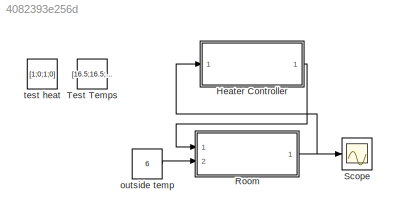
MODEL slx_4082393e256d
KIND model
CONFIG AbsTol = auto
CONFIG EnableMultiTasking = off
CONFIG FixedStep = auto
CONFIG MaxStep = auto
CONFIG MinStep = auto
CONFIG RelTol = 1e-3
CONFIG SampleTimeConstraint = Unconstrained
CONFIG SolverName = FixedStepAuto
CONFIG StartTime = 0.0
CONFIG StopTime = 25.0
WORKSPACE source: mxarray member
WORKSPACE Constant_a: Simulink.Parameter (value not decoded)
WORKSPACE Constant_b: Simulink.Parameter (value not decoded)
WORKSPACE Initial_Room_Temps: Simulink.Parameter (value not decoded)
WORKSPACE constant_c: Simulink.Parameter (value not decoded)
WORKSPACE dif_temps: Simulink.Parameter (value not decoded)
WORKSPACE get_temps: Simulink.Parameter (value not decoded)
WORKSPACE initial_placement: Simulink.Parameter (value not decoded)
WORKSPACE off_temps: Simulink.Parameter (value not decoded)
WORKSPACE on_temps: Simulink.Parameter (value not decoded)
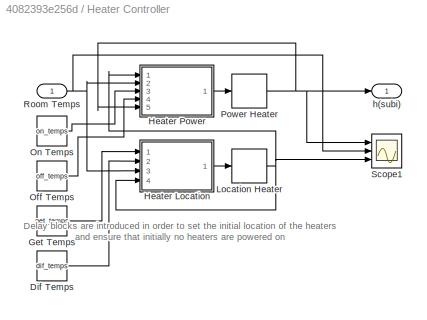
BLOCK [SubSystem] Heater Controller
  Ports = [1, 1]
  RequestExecContextInheritance = off
BLOCK [Constant] Heater Controller/Dif Temps
  Value = dif_temps
BLOCK [Constant] Heater Controller/Get Temps
  Value = get_temps
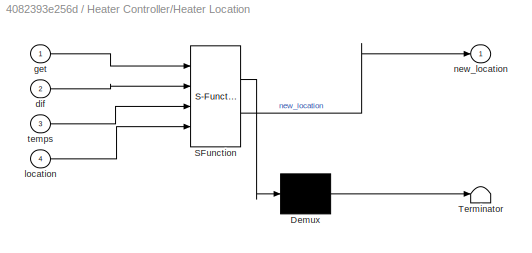
BLOCK [SubSystem] Heater Controller/Heater Location
  ErrorFcn = Stateflow.Translate.translate
  PermitHierarchicalResolution = ExplicitOnly
  Ports = [4, 1]
  RequestExecContextInheritance = off
  SFBlockType = MATLAB Function
  TreatAsAtomicUnit = on
BLOCK [Demux] Heater Controller/Heater Location/ Demux 
  Outputs = 1
  Ports = [1, 1]
BLOCK [S-Function] Heater Controller/Heater Location/ SFunction 
  EnableBusSupport = on
  FunctionName = sf_sfun
  PortCounts = [4 2]
  Ports = [4, 2]
  SFcnIsStateOwnerBlock = off
  SFunctionDeploymentMode = off
  Tag = Stateflow S-Function 1
BLOCK [Terminator] Heater Controller/Heater Location/ Terminator 
BLOCK [Inport] Heater Controller/Heater Location/dif
  Port = 2
BLOCK [Inport] Heater Controller/Heater Location/get
BLOCK [Inport] Heater Controller/Heater Location/location
  Port = 4
BLOCK [Outport] Heater Controller/Heater Location/new_location
BLOCK [Inport] Heater Controller/Heater Location/temps
  Port = 3
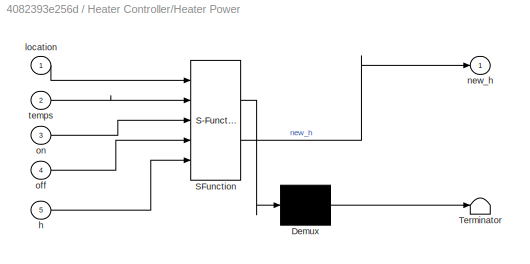
BLOCK [SubSystem] Heater Controller/Heater Power
  ErrorFcn = Stateflow.Translate.translate
  PermitHierarchicalResolution = ExplicitOnly
  Ports = [5, 1]
  RequestExecContextInheritance = off
  SFBlockType = MATLAB Function
  TreatAsAtomicUnit = on
BLOCK [Demux] Heater Controller/Heater Power/ Demux 
  Outputs = 1
  Ports = [1, 1]
BLOCK [S-Function] Heater Controller/Heater Power/ SFunction 
  EnableBusSupport = on
  FunctionName = sf_sfun
  PortCounts = [5 2]
  Ports = [5, 2]
  SFcnIsStateOwnerBlock = off
  SFunctionDeploymentMode = off
  Tag = Stateflow S-Function 3
BLOCK [Terminator] Heater Controller/Heater Power/ Terminator 
BLOCK [Inport] Heater Controller/Heater Power/h
  Port = 5
BLOCK [Inport] Heater Controller/Heater Power/location
BLOCK [Outport] Heater Controller/Heater Power/new_h
BLOCK [Inport] Heater Controller/Heater Power/off
  Port = 4
BLOCK [Inport] Heater Controller/Heater Power/on
  Port = 3
BLOCK [Inport] Heater Controller/Heater Power/temps
  Port = 2
BLOCK [Delay] Heater Controller/Location Heater
  DelayLength = 1
  InitialCondition = initial_placement
  InputPortMap = u0
  Ports = [1, 1]
BLOCK [Constant] Heater Controller/Off Temps
  Value = off_temps
BLOCK [Constant] Heater Controller/On Temps
  Value = on_temps
BLOCK [Delay] Heater Controller/Power Heater
  DelayLength = 1
  InitialCondition = [0;0;0;0]
  InputPortMap = u0
  Ports = [1, 1]
BLOCK [Inport] Heater Controller/Room Temps
BLOCK [Scope] Heater Controller/Scope1
  Floating = off
  NumInputPorts = 3
  Ports = [3]
  ScopeSpecificationString = Simulink.scopes.TimeScopeBlockCfg('CurrentConfiguration', extmgr.ConfigurationSet(extmgr.Configuration('Core','General UI',true),extmgr.Configuration('Core','Source UI',true),extmgr.Configuration('Sources','WiredSimulink',true,'DataLoggingVariableName','ScopeData3'),extmgr.Configuration('Visuals','Time Domain',true,'SerializedDisplays',{struct('MinYLimReal','-0.125','MaxYLimReal','1.125','YLabelRe...<+3205ch>
BLOCK [Outport] Heater Controller/h(subi)
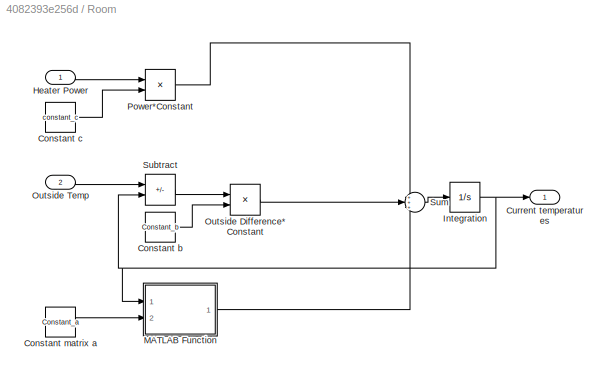
BLOCK [SubSystem] Room
  Ports = [2, 1]
  RequestExecContextInheritance = off
BLOCK [Constant] Room/Constant b
  Value = Constant_b
BLOCK [Constant] Room/Constant c
  Value = constant_c
BLOCK [Constant] Room/Constant matrix a
  Value = Constant_a
  VectorParams1D = off
BLOCK [Outport] Room/Current temperatures
BLOCK [Inport] Room/Heater Power
  PortDimensions = 4
BLOCK [Integrator] Room/Integration
  InitialCondition = Initial_Room_Temps
  Ports = [1, 1]
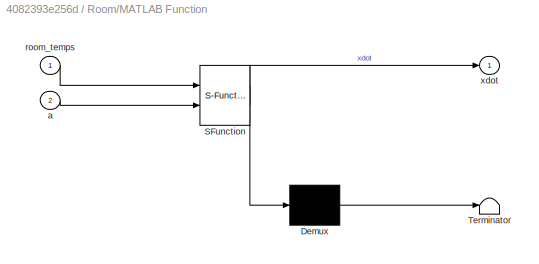
BLOCK [SubSystem] Room/MATLAB Function
  ErrorFcn = Stateflow.Translate.translate
  PermitHierarchicalResolution = ExplicitOnly
  Ports = [2, 1]
  RequestExecContextInheritance = off
  SFBlockType = MATLAB Function
  TreatAsAtomicUnit = on
BLOCK [Demux] Room/MATLAB Function/ Demux 
  Outputs = 1
  Ports = [1, 1]
BLOCK [S-Function] Room/MATLAB Function/ SFunction 
  EnableBusSupport = on
  FunctionName = sf_sfun
  PortCounts = [2 2]
  Ports = [2, 2]
  SFcnIsStateOwnerBlock = off
  SFunctionDeploymentMode = off
  Tag = Stateflow S-Function 2
BLOCK [Terminator] Room/MATLAB Function/ Terminator 
BLOCK [Inport] Room/MATLAB Function/a
  Port = 2
BLOCK [Inport] Room/MATLAB Function/room_temps
BLOCK [Outport] Room/MATLAB Function/xdot
BLOCK [Product] Room/Outside Difference*Constant
  Ports = [2, 1]
BLOCK [Inport] Room/Outside Temp
  Port = 2
BLOCK [Product] Room/Power*Constant
  Ports = [2, 1]
BLOCK [Sum] Room/Subtract
  IconShape = rectangular
  Inputs = +-
  Ports = [2, 1]
BLOCK [Sum] Room/Sum
  Inputs = +++
  Ports = [3, 1]
BLOCK [Scope] Scope
  Floating = off
  NumInputPorts = 1
  Ports = [1]
  ScopeSpecificationString = Simulink.scopes.TimeScopeBlockCfg('CurrentConfiguration', extmgr.ConfigurationSet(extmgr.Configuration('Core','General UI',true),extmgr.Configuration('Core','Source UI',true),extmgr.Configuration('Sources','WiredSimulink',true),extmgr.Configuration('Visuals','Time Domain',true,'SerializedDisplays',{struct('MinYLimReal','11.50803','MaxYLimReal','22.44632','YLabelReal','','MinYLimMag','11.50803','Ma...<+1386ch>
BLOCK [Constant] Test Temps
  Commented = on
  Value = [16.5;16.5;16.5;16.5]
BLOCK [Constant] outside temp
  Value = 6
BLOCK [Constant] test heat
  Commented = on
  Value = [1;0;1;0]
ANNOTATION Heater Controller: Delay blocks are introduced in order to set the initial location of the heaters and ensure that initially no heaters are powered on
LINE Heater Controller/Dif Temps:1 -> Heater Controller/Heater Location:2
LINE Heater Controller/Get Temps:1 -> Heater Controller/Heater Location:1
LINE Heater Controller/Heater Location:1 -> Heater Controller/Location Heater:1
LINE Heater Controller/Heater Power:1 -> Heater Controller/Power Heater:1
NET Heater Controller/Location Heater:1 -> Heater Controller/Heater Location:4, Heater Controller/Heater Power:1, Heater Controller/Scope1:3
LINE Heater Controller/Off Temps:1 -> Heater Controller/Heater Power:4
LINE Heater Controller/On Temps:1 -> Heater Controller/Heater Power:3
NET Heater Controller/Power Heater:1 -> Heater Controller/Heater Power:5, Heater Controller/Scope1:1, Heater Controller/h(subi):1
NET Heater Controller/Room Temps:1 -> Heater Controller/Heater Location:3, Heater Controller/Heater Power:2, Heater Controller/Scope1:2
LINE Heater Controller:1 -> Room:1
LINE Room/Constant b:1 -> Room/Outside Difference*Constant:2
LINE Room/Constant c:1 -> Room/Power*Constant:2
LINE Room/Constant matrix a:1 -> Room/MATLAB Function:2
LINE Room/Heater Power:1 -> Room/Power*Constant:1
NET Room/Integration:1 -> Room/Current temperatures:1, Room/MATLAB Function:1, Room/Subtract:2
LINE Room/MATLAB Function:1 -> Room/Sum:3
LINE Room/Outside Difference*Constant:1 -> Room/Sum:2
LINE Room/Outside Temp:1 -> Room/Subtract:1
LINE Room/Power*Constant:1 -> Room/Sum:1
LINE Room/Subtract:1 -> Room/Outside Difference*Constant:1
LINE Room/Sum:1 -> Room/Integration:1
NET Room:1 -> Heater Controller:1, Scope:1
LINE outside temp:1 -> Room:2
note: NET lines group one-source signal fan-out (src -> all destinations, sorted); 1:1 wires keep LINE
CHART Heater Controller/Heater Location states=1 transitions=1
  STATE_LABEL 'eML_blk_kernel()'
  STATE_LABEL "SCRIPT:\nfunction new_location = fcn(get, dif, temps, location)\n    for i = 1:numel(temps)\n        if location(i) == 0 % Only look to move heater if a room doesn't have one\n            for j = 1:numel(temps)\n                % Swap location of heater if room i does not  have a heater,\n                % room j has a heater, the temperature in room i is less\n                % than or equal to get, and...<+586ch>"
CHART Room/MATLAB Function states=1 transitions=1
  STATE_LABEL 'eML_blk_kernel()'
  STATE_LABEL 'SCRIPT:\nfunction xdot  = fcn(room_temps, a)\n    sum = 0;\n    for j = 1:numel(room_temps)\n        if j ~= 1\n            sum = ((room_temps(j) - room_temps(1)) * a(1, j)) + sum;\n        end\n    end\n    xdot1 = sum;\n\n    sum = 0;\n    for j = 1:numel(room_temps)\n        if j ~= 2\n            sum = ((room_temps(j) - room_temps(2)) * a(2, j)) + sum;\n        end\n    end\n    xdot2 = sum;\n\n    sum = 0;\n   ...<+366ch>'
CHART Heater Controller/Heater Power states=1 transitions=1
  STATE_LABEL 'eML_blk_kernel()'
  STATE_LABEL 'SCRIPT:\n% The parameter h represents the heater power array of the previous time\n% step and the return value of the function is the heater power array of\n% the current time step\nfunction new_h = fcn(location, temps, on, off, h) \n    % Only turn heater on or off if the room has a heater\n    if location(1) == 1\n        if temps(1) <= on(1)\n            h(1) = 1; % Turn heater on\n        elseif temps(...<+1203ch>'
CHART  states=0 transitions=0
CHART  states=0 transitions=0
CHART  states=0 transitions=0
